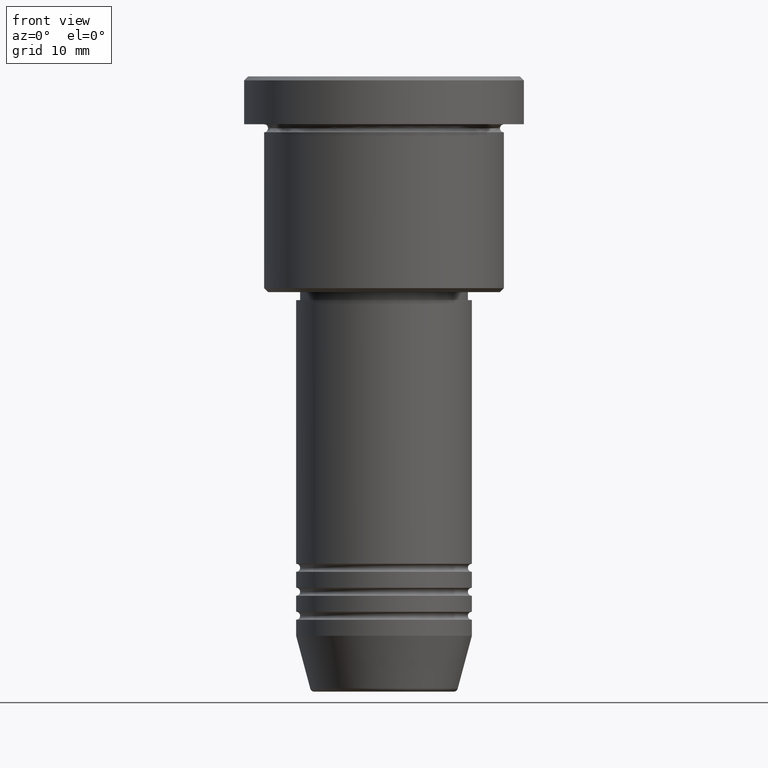
[diagram: clean part render]
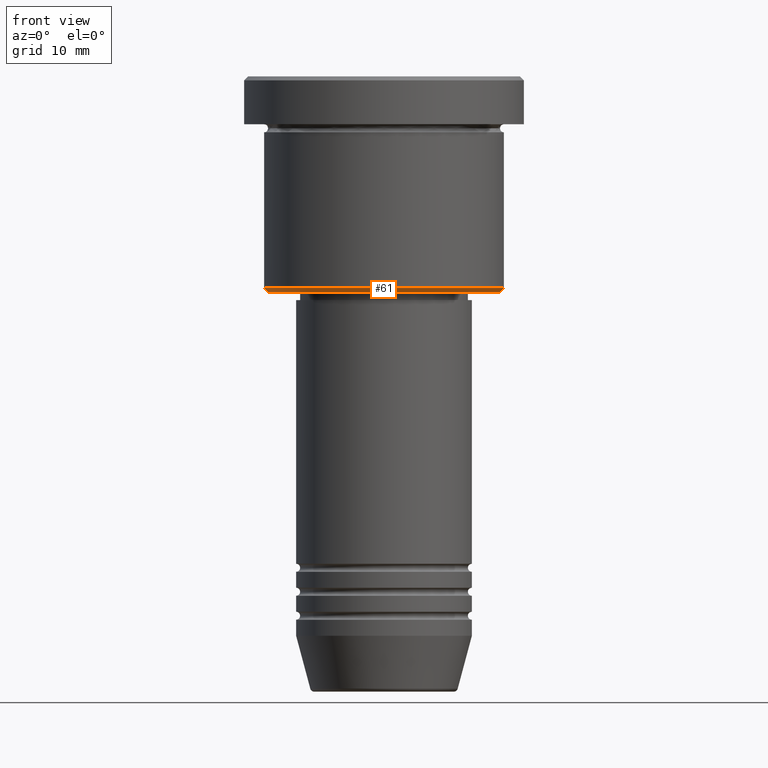
[diagram: same view with one face highlighted and labeled with its STEP entity id]
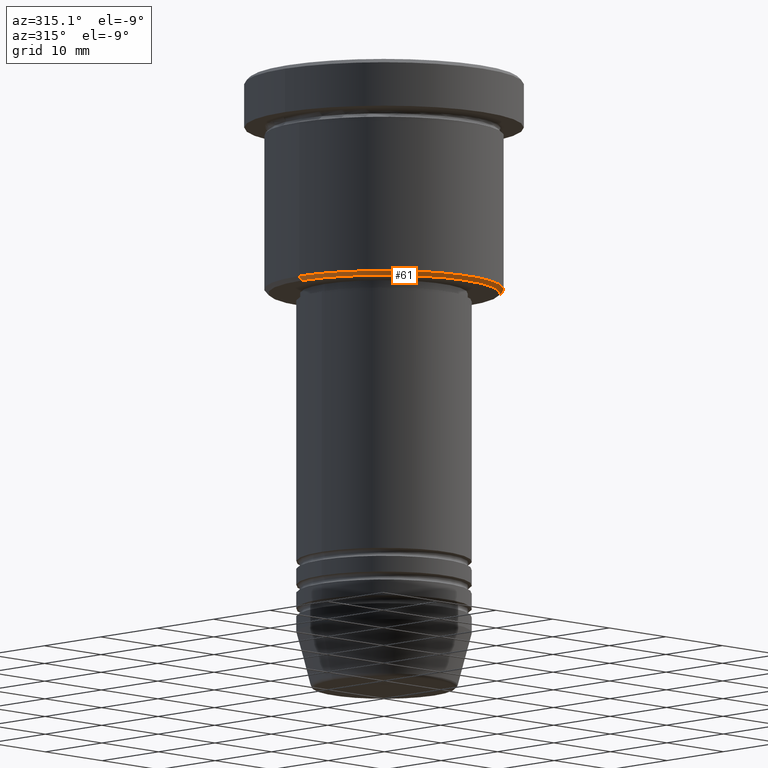
[diagram: same view with one face highlighted and labeled with its STEP entity id]
A machine part, front view. The second image highlights one B-rep face of the part: STEP entity #61.
A second angle (auxiliary view) of the same face is appended — the face is thin or edge-on in the first view.
In plain terms, the highlighted conical surface has half-angle 45 deg.
Its self-contained STEP definition (entity closure, byte-faithful):
#7 = CIRCLE ( 'NONE', #1051, 14.49999999999997868 ) ;
#12 = DIRECTION ( 'NONE',  ( 1.000000000000000000, 0.000000000000000000, 0.000000000000000000 ) ) ;
#61 = ADVANCED_FACE ( 'NONE', ( #1012 ), #1148, .T. ) ;
#83 = EDGE_CURVE ( 'NONE', #334, #955, #7, .T. ) ;
#88 = ORIENTED_EDGE ( 'NONE', *, *, #83, .F. ) ;
#95 = CARTESIAN_POINT ( 'NONE',  ( 0.000000000000000000, 0.000000000000000000, -27.00000000000000355 ) ) ;
#102 = EDGE_CURVE ( 'NONE', #889, #268, #281, .T. ) ;
#159 = VECTOR ( 'NONE', #874, 1000.000000000000114 ) ;
#173 = CARTESIAN_POINT ( 'NONE',  ( 15.00000000000000000, 0.000000000000000000, -26.49999999999999289 ) ) ;
#195 = CARTESIAN_POINT ( 'NONE',  ( 0.000000000000000000, 0.000000000000000000, -26.49999999999999289 ) ) ;
#217 = EDGE_LOOP ( 'NONE', ( #1080, #88, #351, #684 ) ) ;
#268 = VERTEX_POINT ( 'NONE', #173 ) ;
#281 = CIRCLE ( 'NONE', #683, 15.00000000000000000 ) ;
#301 = DIRECTION ( 'NONE',  ( -0.000000000000000000, -0.000000000000000000, 1.000000000000000000 ) ) ;
#322 = DIRECTION ( 'NONE',  ( -0.7071067811865549002, 8.659560562355021605E-17, 0.7071067811865402453 ) ) ;
#334 = VERTEX_POINT ( 'NONE', #749 ) ;
#351 = ORIENTED_EDGE ( 'NONE', *, *, #750, .T. ) ;
#371 = CARTESIAN_POINT ( 'NONE',  ( -14.49999999999997868, 1.806354028742344224E-15, -27.00000000000000355 ) ) ;
#413 = LINE ( 'NONE', #972, #1035 ) ;
#460 = DIRECTION ( 'NONE',  ( -1.000000000000000000, 0.000000000000000000, 0.000000000000000000 ) ) ;
#548 = CARTESIAN_POINT ( 'NONE',  ( 0.000000000000000000, 0.000000000000000000, -26.49999999999999289 ) ) ;
#642 = AXIS2_PLACEMENT_3D ( 'NONE', #195, #301, #12 ) ;
#683 = AXIS2_PLACEMENT_3D ( 'NONE', #548, #917, #829 ) ;
#684 = ORIENTED_EDGE ( 'NONE', *, *, #102, .F. ) ;
#749 = CARTESIAN_POINT ( 'NONE',  ( 14.49999999999997868, 0.000000000000000000, -27.00000000000000355 ) ) ;
#750 = EDGE_CURVE ( 'NONE', #334, #268, #1154, .T. ) ;
#781 = CARTESIAN_POINT ( 'NONE',  ( 15.00000000000000000, 0.000000000000000000, -26.49999999999999289 ) ) ;
#826 = DIRECTION ( 'NONE',  ( 0.000000000000000000, 0.000000000000000000, -1.000000000000000000 ) ) ;
#829 = DIRECTION ( 'NONE',  ( -1.000000000000000000, 0.000000000000000000, 0.000000000000000000 ) ) ;
#874 = DIRECTION ( 'NONE',  ( 0.7071067811865549002, 0.000000000000000000, 0.7071067811865402453 ) ) ;
#889 = VERTEX_POINT ( 'NONE', #1079 ) ;
#917 = DIRECTION ( 'NONE',  ( -0.000000000000000000, -0.000000000000000000, 1.000000000000000000 ) ) ;
#955 = VERTEX_POINT ( 'NONE', #371 ) ;
#972 = CARTESIAN_POINT ( 'NONE',  ( -15.00000000000000000, 1.836970198721029589E-15, -26.49999999999999289 ) ) ;
#1012 = FACE_OUTER_BOUND ( 'NONE', #217, .T. ) ;
#1035 = VECTOR ( 'NONE', #322, 1000.000000000000114 ) ;
#1051 = AXIS2_PLACEMENT_3D ( 'NONE', #95, #826, #460 ) ;
#1079 = CARTESIAN_POINT ( 'NONE',  ( -15.00000000000000000, 1.836970198721029589E-15, -26.49999999999999289 ) ) ;
#1080 = ORIENTED_EDGE ( 'NONE', *, *, #1175, .F. ) ;
#1148 = CONICAL_SURFACE ( 'NONE', #642, 15.00000000000000000, 0.7853981633974587151 ) ;
#1154 = LINE ( 'NONE', #781, #159 ) ;
#1175 = EDGE_CURVE ( 'NONE', #955, #889, #413, .T. ) ;